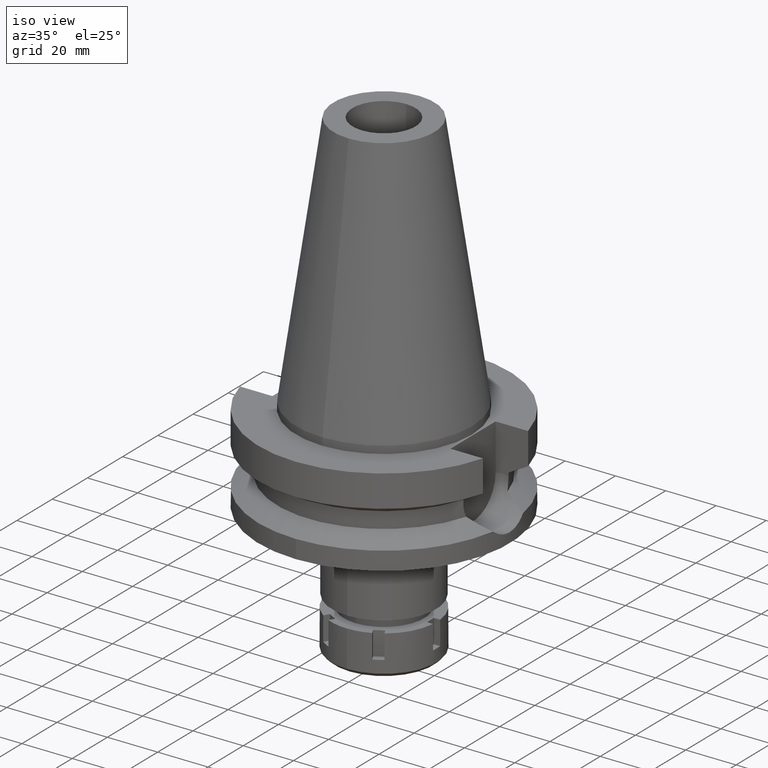
[diagram: clean part render]
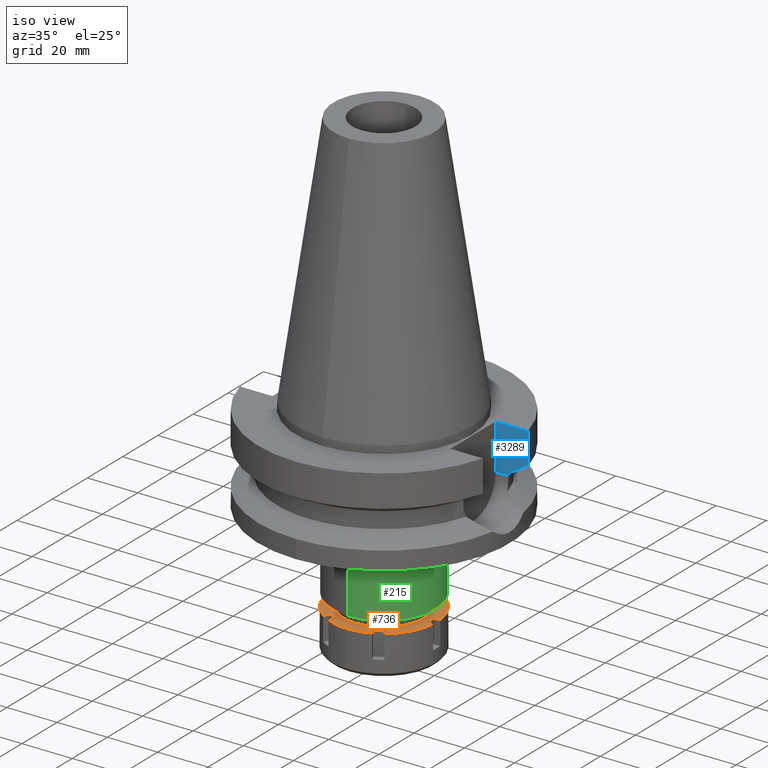
[diagram: same view with three faces highlighted in distinct colors, each labeled with its STEP entity id]
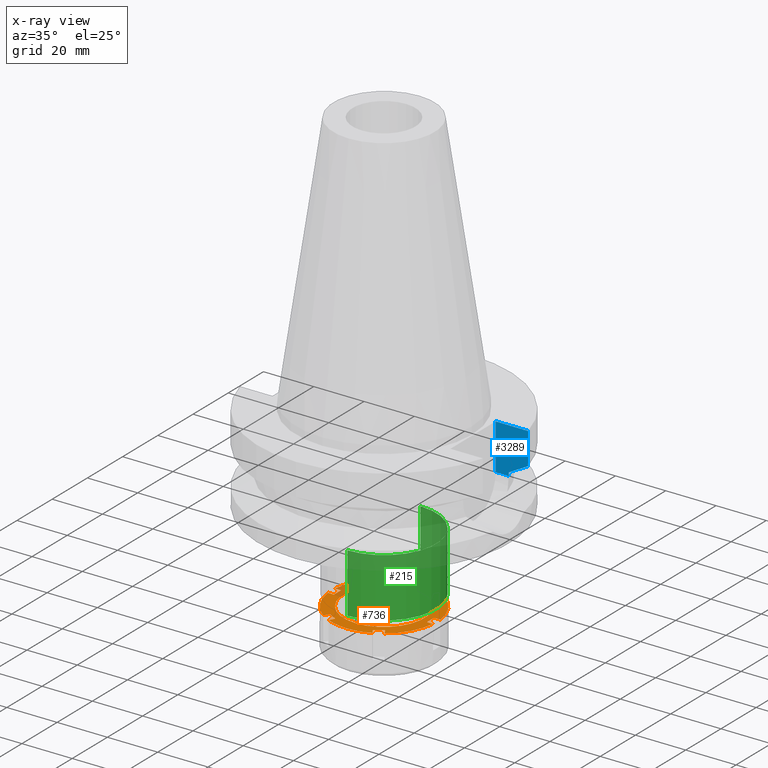
[diagram: x-ray of the same camera — body ghosted, the three highlighted faces saturated]
A machine part, iso view with three faces highlighted in distinct colors.
The next image is the same camera in x-ray (body ghosted, the three faces saturated) — at least one of them is partly hidden behind the body in this view.
Their STEP definitions:

[orange] entity #736 — the highlighted planar face has unit normal (0, 0, -1).
#27 = DIRECTION ( 'NONE',  ( 0.0000000000000000000, 0.0000000000000000000, -1.000000000000000000 ) ) ;
#37 = VERTEX_POINT ( 'NONE', #3438 ) ;
#45 = VERTEX_POINT ( 'NONE', #2312 ) ;
#88 = CARTESIAN_POINT ( 'NONE',  ( 18.50000000000000000, 2.000000000000000000, 0.0000000000000000000 ) ) ;
#99 = LINE ( 'NONE', #1789, #450 ) ;
#114 = VECTOR ( 'NONE', #2872, 1000.000000000000114 ) ;
#199 = EDGE_CURVE ( 'NONE', #2086, #3488, #3001, .T. ) ;
#203 = EDGE_CURVE ( 'NONE', #3253, #2000, #1267, .T. ) ;
#224 = VERTEX_POINT ( 'NONE', #1815 ) ;
#225 = FACE_BOUND ( 'NONE', #2887, .T. ) ;
#243 = ORIENTED_EDGE ( 'NONE', *, *, #522, .F. ) ;
#249 = CIRCLE ( 'NONE', #610, 20.99999999999999289 ) ;
#252 = VERTEX_POINT ( 'NONE', #495 ) ;
#300 = CIRCLE ( 'NONE', #3279, 21.00000000000000000 ) ;
#312 = EDGE_CURVE ( 'NONE', #3313, #2456, #3573, .T. ) ;
#317 = CARTESIAN_POINT ( 'NONE',  ( 18.50000000000000000, 2.000000000000000000, 0.0000000000000000000 ) ) ;
#322 = CARTESIAN_POINT ( 'NONE',  ( -7.517949192430999794, 17.02146997000999917, 0.0000000000000000000 ) ) ;
#331 = LINE ( 'NONE', #2069, #2723 ) ;
#350 = CARTESIAN_POINT ( 'NONE',  ( 0.0000000000000000000, 0.0000000000000000000, 0.0000000000000000000 ) ) ;
#352 = DIRECTION ( 'NONE',  ( 0.0000000000000000000, 0.0000000000000000000, 1.000000000000000000 ) ) ;
#355 = ORIENTED_EDGE ( 'NONE', *, *, #3055, .F. ) ;
#358 = LINE ( 'NONE', #2311, #751 ) ;
#376 = EDGE_CURVE ( 'NONE', #1419, #2991, #1690, .T. ) ;
#378 = CARTESIAN_POINT ( 'NONE',  ( 0.0000000000000000000, 0.0000000000000000000, 0.0000000000000000000 ) ) ;
#416 = CARTESIAN_POINT ( 'NONE',  ( 10.98205080757000118, -15.02146997001000095, 0.0000000000000000000 ) ) ;
#450 = VECTOR ( 'NONE', #2849, 1000.000000000000114 ) ;
#457 = CARTESIAN_POINT ( 'NONE',  ( -20.90454496036999998, 2.000000000000000000, 0.0000000000000000000 ) ) ;
#469 = ORIENTED_EDGE ( 'NONE', *, *, #3005, .T. ) ;
#495 = CARTESIAN_POINT ( 'NONE',  ( 0.0000000000000000000, -21.00000000000000000, 0.0000000000000000000 ) ) ;
#500 = EDGE_CURVE ( 'NONE', #2115, #2772, #3475, .T. ) ;
#507 = DIRECTION ( 'NONE',  ( -1.000000000000000000, 4.090826397637000243E-14, 0.0000000000000000000 ) ) ;
#510 = ORIENTED_EDGE ( 'NONE', *, *, #3107, .F. ) ;
#522 = EDGE_CURVE ( 'NONE', #224, #2523, #249, .T. ) ;
#531 = VERTEX_POINT ( 'NONE', #3456 ) ;
#534 = CIRCLE ( 'NONE', #3520, 16.00000000000000000 ) ;
#541 = ORIENTED_EDGE ( 'NONE', *, *, #312, .F. ) ;
#552 = EDGE_CURVE ( 'NONE', #1763, #616, #2310, .T. ) ;
#577 = ORIENTED_EDGE ( 'NONE', *, *, #2313, .F. ) ;
#610 = AXIS2_PLACEMENT_3D ( 'NONE', #946, #3162, #617 ) ;
#616 = VERTEX_POINT ( 'NONE', #88 ) ;
#617 = DIRECTION ( 'NONE',  ( -0.9954545219222313834, 0.09523809523810303213, 0.0000000000000000000 ) ) ;
#629 = DIRECTION ( 'NONE',  ( 0.4999999999997049027, 0.8660254037846089048, 0.0000000000000000000 ) ) ;
#646 = DIRECTION ( 'NONE',  ( -0.8660254037844541397, -0.4999999999999731326, 0.0000000000000000000 ) ) ;
#663 = VECTOR ( 'NONE', #2950, 1000.000000000000114 ) ;
#673 = ORIENTED_EDGE ( 'NONE', *, *, #2640, .F. ) ;
#684 = CARTESIAN_POINT ( 'NONE',  ( -20.90454496036999998, -2.000000000000000000, 0.0000000000000000000 ) ) ;
#695 = LINE ( 'NONE', #2951, #1042 ) ;
#711 = DIRECTION ( 'NONE',  ( 0.0000000000000000000, 0.0000000000000000000, -1.000000000000000000 ) ) ;
#713 = EDGE_LOOP ( 'NONE', ( #1864, #2308, #3160, #1148, #1231, #243, #3347, #1391, #2933, #2239, #355, #577, #1086, #1951, #747, #2539, #1090, #1560, #510, #469, #3605, #744, #541, #2839, #1199, #2855 ) ) ;
#725 = FACE_OUTER_BOUND ( 'NONE', #713, .T. ) ;
#729 = DIRECTION ( 'NONE',  ( 0.0000000000000000000, 0.0000000000000000000, 1.000000000000000000 ) ) ;
#736 = ADVANCED_FACE ( 'NONE', ( #725, #225 ), #2714, .F. ) ;
#741 = DIRECTION ( 'NONE',  ( 1.000000000000000000, 4.127763882039999760E-14, 0.0000000000000000000 ) ) ;
#744 = ORIENTED_EDGE ( 'NONE', *, *, #1136, .T. ) ;
#747 = ORIENTED_EDGE ( 'NONE', *, *, #3566, .F. ) ;
#748 = CARTESIAN_POINT ( 'NONE',  ( 18.50000000000000000, -2.000000000000000000, 0.0000000000000000000 ) ) ;
#751 = VECTOR ( 'NONE', #1439, 1000.000000000000000 ) ;
#752 = VECTOR ( 'NONE', #2638, 1000.000000000000114 ) ;
#766 = LINE ( 'NONE', #2721, #987 ) ;
#790 = LINE ( 'NONE', #3013, #1557 ) ;
#798 = EDGE_CURVE ( 'NONE', #224, #3143, #3248, .T. ) ;
#836 = VECTOR ( 'NONE', #1454, 1000.000000000000000 ) ;
#849 = CARTESIAN_POINT ( 'NONE',  ( 10.98205080757000118, 15.02146997001000095, 0.0000000000000000000 ) ) ;
#857 = CARTESIAN_POINT ( 'NONE',  ( 0.0000000000000000000, 0.0000000000000000000, 0.0000000000000000000 ) ) ;
#876 = DIRECTION ( 'NONE',  ( -0.5802058708454290725, -0.8144698566776411575, 0.0000000000000000000 ) ) ;
#925 = VERTEX_POINT ( 'NONE', #849 ) ;
#942 = DIRECTION ( 'NONE',  ( 0.0000000000000000000, 0.0000000000000000000, -1.000000000000000000 ) ) ;
#946 = CARTESIAN_POINT ( 'NONE',  ( 0.0000000000000000000, 0.0000000000000000000, 0.0000000000000000000 ) ) ;
#987 = VECTOR ( 'NONE', #2473, 1000.000000000000114 ) ;
#1034 = CARTESIAN_POINT ( 'NONE',  ( -10.98205080757000118, -15.02146997001000095, 0.0000000000000000000 ) ) ;
#1042 = VECTOR ( 'NONE', #1511, 1000.000000000000114 ) ;
#1086 = ORIENTED_EDGE ( 'NONE', *, *, #199, .F. ) ;
#1090 = ORIENTED_EDGE ( 'NONE', *, *, #2138, .F. ) ;
#1096 = AXIS2_PLACEMENT_3D ( 'NONE', #1858, #3247, #1879 ) ;
#1108 = DIRECTION ( 'NONE',  ( 0.0000000000000000000, -1.000000000000000000, 0.0000000000000000000 ) ) ;
#1136 = EDGE_CURVE ( 'NONE', #616, #2456, #3156, .T. ) ;
#1148 = ORIENTED_EDGE ( 'NONE', *, *, #376, .F. ) ;
#1169 = DIRECTION ( 'NONE',  ( 0.8660254037844541397, 0.4999999999999731326, 0.0000000000000000000 ) ) ;
#1199 = ORIENTED_EDGE ( 'NONE', *, *, #2706, .F. ) ;
#1209 = DIRECTION ( 'NONE',  ( 0.0000000000000000000, 0.0000000000000000000, -1.000000000000000000 ) ) ;
#1211 = EDGE_CURVE ( 'NONE', #37, #2697, #534, .T. ) ;
#1231 = ORIENTED_EDGE ( 'NONE', *, *, #2199, .F. ) ;
#1233 = CARTESIAN_POINT ( 'NONE',  ( 0.0000000000000000000, 0.0000000000000000000, 0.0000000000000000000 ) ) ;
#1241 = CARTESIAN_POINT ( 'NONE',  ( 12.18432328774999895, -17.10386699022999935, 0.0000000000000000000 ) ) ;
#1267 = LINE ( 'NONE', #2699, #1295 ) ;
#1295 = VECTOR ( 'NONE', #2379, 1000.000000000000114 ) ;
#1391 = ORIENTED_EDGE ( 'NONE', *, *, #1945, .T. ) ;
#1401 = CARTESIAN_POINT ( 'NONE',  ( -10.98205080757000118, 15.02146997001000095, 0.0000000000000000000 ) ) ;
#1402 = DIRECTION ( 'NONE',  ( -0.4152486510768949035, 0.9097079519157886818, 0.0000000000000000000 ) ) ;
#1419 = VERTEX_POINT ( 'NONE', #2184 ) ;
#1439 = DIRECTION ( 'NONE',  ( -1.000000000000000000, -4.100060768738000191E-14, 0.0000000000000000000 ) ) ;
#1454 = DIRECTION ( 'NONE',  ( 0.0000000000000000000, 1.000000000000000000, 0.0000000000000000000 ) ) ;
#1458 = DIRECTION ( 'NONE',  ( 0.0000000000000000000, 0.0000000000000000000, -1.000000000000000000 ) ) ;
#1465 = LINE ( 'NONE', #1500, #1997 ) ;
#1477 = LINE ( 'NONE', #1730, #1970 ) ;
#1500 = CARTESIAN_POINT ( 'NONE',  ( 10.98205080757000118, -15.02146997001000095, 0.0000000000000000000 ) ) ;
#1511 = DIRECTION ( 'NONE',  ( 0.8660254037844541397, -0.4999999999999731326, 0.0000000000000000000 ) ) ;
#1528 = AXIS2_PLACEMENT_3D ( 'NONE', #2803, #27, #3019 ) ;
#1529 = VECTOR ( 'NONE', #2344, 1000.000000000000000 ) ;
#1536 = CARTESIAN_POINT ( 'NONE',  ( -7.517949192430999794, -17.02146997000999917, 0.0000000000000000000 ) ) ;
#1557 = VECTOR ( 'NONE', #507, 1000.000000000000000 ) ;
#1560 = ORIENTED_EDGE ( 'NONE', *, *, #500, .F. ) ;
#1577 = CARTESIAN_POINT ( 'NONE',  ( 0.0000000000000000000, 16.00000000000000000, 0.0000000000000000000 ) ) ;
#1597 = EDGE_CURVE ( 'NONE', #252, #2086, #300, .T. ) ;
#1615 = AXIS2_PLACEMENT_3D ( 'NONE', #857, #1209, #2886 ) ;
#1681 = CIRCLE ( 'NONE', #1096, 21.00000000000000000 ) ;
#1690 = LINE ( 'NONE', #1401, #1818 ) ;
#1730 = CARTESIAN_POINT ( 'NONE',  ( -10.98205080757000118, -15.02146997001000095, 0.0000000000000000000 ) ) ;
#1741 = CARTESIAN_POINT ( 'NONE',  ( 0.0000000000000000000, 0.0000000000000000000, 0.0000000000000000000 ) ) ;
#1757 = CARTESIAN_POINT ( 'NONE',  ( -12.18432328774999895, 17.10386699022999935, 0.0000000000000000000 ) ) ;
#1763 = VERTEX_POINT ( 'NONE', #748 ) ;
#1789 = CARTESIAN_POINT ( 'NONE',  ( -7.517949192430999794, 17.02146997000999917, 0.0000000000000000000 ) ) ;
#1815 = CARTESIAN_POINT ( 'NONE',  ( -20.90454496036999998, 2.000000000000000000, 0.0000000000000000000 ) ) ;
#1818 = VECTOR ( 'NONE', #1169, 1000.000000000000114 ) ;
#1841 = CARTESIAN_POINT ( 'NONE',  ( 12.18432328774999895, 17.10386699022999935, 0.0000000000000000000 ) ) ;
#1858 = CARTESIAN_POINT ( 'NONE',  ( 0.0000000000000000000, 0.0000000000000000000, 0.0000000000000000000 ) ) ;
#1861 = DIRECTION ( 'NONE',  ( 0.0000000000000000000, -1.000000000000000000, 0.0000000000000000000 ) ) ;
#1864 = ORIENTED_EDGE ( 'NONE', *, *, #3245, .F. ) ;
#1879 = DIRECTION ( 'NONE',  ( 0.0000000000000000000, 1.000000000000000000, 0.0000000000000000000 ) ) ;
#1897 = VERTEX_POINT ( 'NONE', #1034 ) ;
#1904 = CIRCLE ( 'NONE', #2035, 20.99999999999999645 ) ;
#1915 = CARTESIAN_POINT ( 'NONE',  ( -8.720221672615998898, -19.10386699022999935, 0.0000000000000000000 ) ) ;
#1923 = VERTEX_POINT ( 'NONE', #1925 ) ;
#1925 = CARTESIAN_POINT ( 'NONE',  ( 20.90454496036999998, -2.000000000000000000, 0.0000000000000000000 ) ) ;
#1928 = CARTESIAN_POINT ( 'NONE',  ( 0.0000000000000000000, 21.00000000000000000, 0.0000000000000000000 ) ) ;
#1938 = EDGE_CURVE ( 'NONE', #531, #2363, #2628, .T. ) ;
#1945 = EDGE_CURVE ( 'NONE', #3143, #2105, #2507, .T. ) ;
#1951 = ORIENTED_EDGE ( 'NONE', *, *, #1597, .F. ) ;
#1953 = CARTESIAN_POINT ( 'NONE',  ( 7.517949192430999794, 17.02146997000999917, 0.0000000000000000000 ) ) ;
#1970 = VECTOR ( 'NONE', #3164, 1000.000000000000114 ) ;
#1997 = VECTOR ( 'NONE', #646, 1000.000000000000114 ) ;
#2000 = VERTEX_POINT ( 'NONE', #1953 ) ;
#2009 = CARTESIAN_POINT ( 'NONE',  ( -12.18432328774999895, 17.10386699022999935, 0.0000000000000000000 ) ) ;
#2035 = AXIS2_PLACEMENT_3D ( 'NONE', #378, #1458, #876 ) ;
#2069 = CARTESIAN_POINT ( 'NONE',  ( 10.98205080757000118, 15.02146997001000095, 0.0000000000000000000 ) ) ;
#2086 = VERTEX_POINT ( 'NONE', #1915 ) ;
#2105 = VERTEX_POINT ( 'NONE', #2773 ) ;
#2115 = VERTEX_POINT ( 'NONE', #3034 ) ;
#2138 = EDGE_CURVE ( 'NONE', #2772, #3016, #1465, .T. ) ;
#2171 = VECTOR ( 'NONE', #3182, 1000.000000000000114 ) ;
#2175 = EDGE_CURVE ( 'NONE', #2991, #531, #99, .T. ) ;
#2184 = CARTESIAN_POINT ( 'NONE',  ( -10.98205080757000118, 15.02146997001000095, 0.0000000000000000000 ) ) ;
#2198 = VERTEX_POINT ( 'NONE', #684 ) ;
#2199 = EDGE_CURVE ( 'NONE', #2523, #1419, #3396, .T. ) ;
#2239 = ORIENTED_EDGE ( 'NONE', *, *, #3128, .F. ) ;
#2304 = LINE ( 'NONE', #1536, #752 ) ;
#2308 = ORIENTED_EDGE ( 'NONE', *, *, #1938, .F. ) ;
#2310 = LINE ( 'NONE', #2580, #836 ) ;
#2311 = CARTESIAN_POINT ( 'NONE',  ( 20.90454496036999998, -2.000000000000000000, 0.0000000000000000000 ) ) ;
#2312 = CARTESIAN_POINT ( 'NONE',  ( 8.720221672615000585, -19.10386699022999935, 0.0000000000000000000 ) ) ;
#2313 = EDGE_CURVE ( 'NONE', #3488, #1897, #2304, .T. ) ;
#2326 = AXIS2_PLACEMENT_3D ( 'NONE', #350, #942, #2874 ) ;
#2338 = DIRECTION ( 'NONE',  ( 0.0000000000000000000, -1.000000000000000000, 0.0000000000000000000 ) ) ;
#2344 = DIRECTION ( 'NONE',  ( 1.000000000000000000, -3.989248315528999745E-14, 0.0000000000000000000 ) ) ;
#2347 = VECTOR ( 'NONE', #1108, 1000.000000000000000 ) ;
#2353 = CARTESIAN_POINT ( 'NONE',  ( 0.0000000000000000000, 0.0000000000000000000, 0.0000000000000000000 ) ) ;
#2363 = VERTEX_POINT ( 'NONE', #1928 ) ;
#2368 = DIRECTION ( 'NONE',  ( 0.0000000000000000000, 1.000000000000000000, 0.0000000000000000000 ) ) ;
#2379 = DIRECTION ( 'NONE',  ( -0.5000000000000169864, -0.8660254037844288266, 0.0000000000000000000 ) ) ;
#2412 = CARTESIAN_POINT ( 'NONE',  ( 8.720221672615000585, 19.10386699022999935, 0.0000000000000000000 ) ) ;
#2420 = CARTESIAN_POINT ( 'NONE',  ( 0.0000000000000000000, 0.0000000000000000000, 0.0000000000000000000 ) ) ;
#2456 = VERTEX_POINT ( 'NONE', #3373 ) ;
#2473 = DIRECTION ( 'NONE',  ( 0.5000000000000169864, -0.8660254037844288266, 0.0000000000000000000 ) ) ;
#2487 = CARTESIAN_POINT ( 'NONE',  ( -12.18432328774999895, -17.10386699022999935, 0.0000000000000000000 ) ) ;
#2507 = LINE ( 'NONE', #3540, #2347 ) ;
#2523 = VERTEX_POINT ( 'NONE', #2009 ) ;
#2539 = ORIENTED_EDGE ( 'NONE', *, *, #2905, .F. ) ;
#2556 = CIRCLE ( 'NONE', #2326, 21.00000000000000711 ) ;
#2580 = CARTESIAN_POINT ( 'NONE',  ( 18.50000000000000000, -2.000000000000000000, 0.0000000000000000000 ) ) ;
#2628 = CIRCLE ( 'NONE', #3110, 21.00000000000000711 ) ;
#2638 = DIRECTION ( 'NONE',  ( -0.8660254037844541397, 0.4999999999999731326, 0.0000000000000000000 ) ) ;
#2640 = EDGE_CURVE ( 'NONE', #2697, #37, #2660, .T. ) ;
#2660 = CIRCLE ( 'NONE', #3208, 16.00000000000000000 ) ;
#2697 = VERTEX_POINT ( 'NONE', #1577 ) ;
#2699 = CARTESIAN_POINT ( 'NONE',  ( 8.720221672615000585, 19.10386699022999935, 0.0000000000000000000 ) ) ;
#2706 = EDGE_CURVE ( 'NONE', #2000, #925, #695, .T. ) ;
#2714 = PLANE ( 'NONE',  #3418 ) ;
#2721 = CARTESIAN_POINT ( 'NONE',  ( 7.517949192430999794, -17.02146997000999917, 0.0000000000000000000 ) ) ;
#2723 = VECTOR ( 'NONE', #629, 1000.000000000000114 ) ;
#2772 = VERTEX_POINT ( 'NONE', #416 ) ;
#2773 = CARTESIAN_POINT ( 'NONE',  ( -18.50000000000000000, -2.000000000000000000, 0.0000000000000000000 ) ) ;
#2803 = CARTESIAN_POINT ( 'NONE',  ( 0.0000000000000000000, 0.0000000000000000000, 0.0000000000000000000 ) ) ;
#2838 = VERTEX_POINT ( 'NONE', #2487 ) ;
#2839 = ORIENTED_EDGE ( 'NONE', *, *, #3611, .F. ) ;
#2849 = DIRECTION ( 'NONE',  ( -0.5000000000000169864, 0.8660254037844288266, 0.0000000000000000000 ) ) ;
#2855 = ORIENTED_EDGE ( 'NONE', *, *, #203, .F. ) ;
#2871 = DIRECTION ( 'NONE',  ( 0.0000000000000000000, 0.0000000000000000000, -1.000000000000000000 ) ) ;
#2872 = DIRECTION ( 'NONE',  ( 0.4999999999997049027, -0.8660254037846089048, 0.0000000000000000000 ) ) ;
#2874 = DIRECTION ( 'NONE',  ( 0.4152486510768949035, -0.9097079519157886818, 0.0000000000000000000 ) ) ;
#2886 = DIRECTION ( 'NONE',  ( 0.9954545219222313834, -0.09523809523810303213, 0.0000000000000000000 ) ) ;
#2887 = EDGE_LOOP ( 'NONE', ( #673, #3038 ) ) ;
#2905 = EDGE_CURVE ( 'NONE', #3016, #45, #766, .T. ) ;
#2933 = ORIENTED_EDGE ( 'NONE', *, *, #3339, .T. ) ;
#2950 = DIRECTION ( 'NONE',  ( 0.5000000000000169864, 0.8660254037844288266, 0.0000000000000000000 ) ) ;
#2951 = CARTESIAN_POINT ( 'NONE',  ( 7.517949192430999794, 17.02146997000999917, 0.0000000000000000000 ) ) ;
#2980 = CARTESIAN_POINT ( 'NONE',  ( 0.0000000000000000000, 0.0000000000000000000, 0.0000000000000000000 ) ) ;
#2991 = VERTEX_POINT ( 'NONE', #322 ) ;
#3001 = LINE ( 'NONE', #3557, #663 ) ;
#3005 = EDGE_CURVE ( 'NONE', #1923, #1763, #358, .T. ) ;
#3013 = CARTESIAN_POINT ( 'NONE',  ( -18.50000000000000000, -2.000000000000000000, 0.0000000000000000000 ) ) ;
#3016 = VERTEX_POINT ( 'NONE', #3424 ) ;
#3019 = DIRECTION ( 'NONE',  ( 0.5802058708454290725, 0.8144698566776411575, 0.0000000000000000000 ) ) ;
#3034 = CARTESIAN_POINT ( 'NONE',  ( 12.18432328774999895, -17.10386699022999935, 0.0000000000000000000 ) ) ;
#3036 = CARTESIAN_POINT ( 'NONE',  ( -7.517949192430999794, -17.02146997000999917, 0.0000000000000000000 ) ) ;
#3038 = ORIENTED_EDGE ( 'NONE', *, *, #1211, .F. ) ;
#3052 = VECTOR ( 'NONE', #741, 1000.000000000000000 ) ;
#3055 = EDGE_CURVE ( 'NONE', #1897, #2838, #1477, .T. ) ;
#3083 = CARTESIAN_POINT ( 'NONE',  ( -18.50000000000000000, 2.000000000000000000, 0.0000000000000000000 ) ) ;
#3107 = EDGE_CURVE ( 'NONE', #1923, #2115, #3495, .T. ) ;
#3110 = AXIS2_PLACEMENT_3D ( 'NONE', #2420, #3609, #1402 ) ;
#3128 = EDGE_CURVE ( 'NONE', #2838, #2198, #1904, .T. ) ;
#3143 = VERTEX_POINT ( 'NONE', #3083 ) ;
#3156 = LINE ( 'NONE', #317, #1529 ) ;
#3160 = ORIENTED_EDGE ( 'NONE', *, *, #2175, .F. ) ;
#3162 = DIRECTION ( 'NONE',  ( 0.0000000000000000000, 0.0000000000000000000, -1.000000000000000000 ) ) ;
#3164 = DIRECTION ( 'NONE',  ( -0.4999999999997049027, -0.8660254037846089048, 0.0000000000000000000 ) ) ;
#3182 = DIRECTION ( 'NONE',  ( -0.4999999999997049027, 0.8660254037846089048, 0.0000000000000000000 ) ) ;
#3208 = AXIS2_PLACEMENT_3D ( 'NONE', #2353, #729, #2368 ) ;
#3245 = EDGE_CURVE ( 'NONE', #2363, #3253, #1681, .T. ) ;
#3247 = DIRECTION ( 'NONE',  ( 0.0000000000000000000, 0.0000000000000000000, -1.000000000000000000 ) ) ;
#3248 = LINE ( 'NONE', #457, #3052 ) ;
#3253 = VERTEX_POINT ( 'NONE', #2412 ) ;
#3279 = AXIS2_PLACEMENT_3D ( 'NONE', #1233, #2871, #2338 ) ;
#3313 = VERTEX_POINT ( 'NONE', #1841 ) ;
#3339 = EDGE_CURVE ( 'NONE', #2105, #2198, #790, .T. ) ;
#3347 = ORIENTED_EDGE ( 'NONE', *, *, #798, .T. ) ;
#3373 = CARTESIAN_POINT ( 'NONE',  ( 20.90454496036999998, 2.000000000000000000, 0.0000000000000000000 ) ) ;
#3396 = LINE ( 'NONE', #1757, #114 ) ;
#3418 = AXIS2_PLACEMENT_3D ( 'NONE', #2980, #711, #1861 ) ;
#3424 = CARTESIAN_POINT ( 'NONE',  ( 7.517949192430999794, -17.02146997000999917, 0.0000000000000000000 ) ) ;
#3438 = CARTESIAN_POINT ( 'NONE',  ( 0.0000000000000000000, -16.00000000000000000, 0.0000000000000000000 ) ) ;
#3456 = CARTESIAN_POINT ( 'NONE',  ( -8.720221672615000585, 19.10386699022999935, 0.0000000000000000000 ) ) ;
#3475 = LINE ( 'NONE', #1241, #2171 ) ;
#3488 = VERTEX_POINT ( 'NONE', #3036 ) ;
#3495 = CIRCLE ( 'NONE', #1615, 20.99999999999999289 ) ;
#3496 = DIRECTION ( 'NONE',  ( 0.0000000000000000000, -1.000000000000000000, 0.0000000000000000000 ) ) ;
#3520 = AXIS2_PLACEMENT_3D ( 'NONE', #1741, #352, #3496 ) ;
#3540 = CARTESIAN_POINT ( 'NONE',  ( -18.50000000000000000, 2.000000000000000000, 0.0000000000000000000 ) ) ;
#3557 = CARTESIAN_POINT ( 'NONE',  ( -8.720221672615000585, -19.10386699022999935, 0.0000000000000000000 ) ) ;
#3566 = EDGE_CURVE ( 'NONE', #45, #252, #2556, .T. ) ;
#3573 = CIRCLE ( 'NONE', #1528, 20.99999999999999645 ) ;
#3605 = ORIENTED_EDGE ( 'NONE', *, *, #552, .T. ) ;
#3609 = DIRECTION ( 'NONE',  ( 0.0000000000000000000, 0.0000000000000000000, -1.000000000000000000 ) ) ;
#3611 = EDGE_CURVE ( 'NONE', #925, #3313, #331, .T. ) ;

[blue] entity #3289 — the highlighted planar face has unit normal (0, 1, 0).
#398 = EDGE_CURVE ( 'NONE', #1570, #3518, #2253, .T. ) ;
#429 = CARTESIAN_POINT ( 'NONE',  ( 35.39999999999999858, 12.84999999999999964, -3.000000000000000000 ) ) ;
#432 = LINE ( 'NONE', #3524, #3326 ) ;
#440 = DIRECTION ( 'NONE',  ( -0.0000000000000000000, 1.000000000000000000, 0.0000000000000000000 ) ) ;
#461 = ORIENTED_EDGE ( 'NONE', *, *, #2658, .T. ) ;
#536 = CARTESIAN_POINT ( 'NONE',  ( 48.32056913384000296, 12.85000383585999906, -15.66265787441999890 ) ) ;
#604 = ORIENTED_EDGE ( 'NONE', *, *, #1538, .T. ) ;
#644 = CARTESIAN_POINT ( 'NONE',  ( 48.32056913384000296, 12.85000383585999906, -15.66265787441999890 ) ) ;
#721 = LINE ( 'NONE', #3206, #2866 ) ;
#779 = EDGE_CURVE ( 'NONE', #2037, #1367, #2106, .T. ) ;
#787 = CARTESIAN_POINT ( 'NONE',  ( 40.51083300056000525, 12.84999648251999993, -19.99284624891000206 ) ) ;
#814 = EDGE_LOOP ( 'NONE', ( #1591, #1013, #3033, #461, #604, #2191 ) ) ;
#844 = VERTEX_POINT ( 'NONE', #429 ) ;
#853 = DIRECTION ( 'NONE',  ( 8.055814647628599031E-08, -3.029270867165849940E-07, 0.9999999999999509281 ) ) ;
#885 = CARTESIAN_POINT ( 'NONE',  ( 48.32056913384000296, 12.85000383585999906, -15.66265787441999890 ) ) ;
#904 = VECTOR ( 'NONE', #2125, 1000.000000000000000 ) ;
#905 = CARTESIAN_POINT ( 'NONE',  ( 35.39999999999999858, 12.84999999999999964, -21.14999999999999858 ) ) ;
#1013 = ORIENTED_EDGE ( 'NONE', *, *, #398, .T. ) ;
#1053 = VERTEX_POINT ( 'NONE', #1792 ) ;
#1304 = EDGE_CURVE ( 'NONE', #844, #3518, #721, .T. ) ;
#1367 = VERTEX_POINT ( 'NONE', #787 ) ;
#1464 = DIRECTION ( 'NONE',  ( 1.000000000000000000, -3.336643826789999529E-14, 0.0000000000000000000 ) ) ;
#1499 = LINE ( 'NONE', #905, #2569 ) ;
#1538 = EDGE_CURVE ( 'NONE', #1053, #2037, #1499, .T. ) ;
#1570 = VERTEX_POINT ( 'NONE', #644 ) ;
#1586 = CARTESIAN_POINT ( 'NONE',  ( 35.39999999999999858, 12.84999999999999964, -21.14999999999999858 ) ) ;
#1591 = ORIENTED_EDGE ( 'NONE', *, *, #2178, .F. ) ;
#1603 = CARTESIAN_POINT ( 'NONE',  ( 40.51083188481999997, 12.84999999999999964, -21.14999999999999858 ) ) ;
#1722 = CARTESIAN_POINT ( 'NONE',  ( 42.90862369218401540, 12.84999295787632256, -18.67324849511757634 ) ) ;
#1792 = CARTESIAN_POINT ( 'NONE',  ( 35.39999999999999858, 12.84999999999999964, -21.14999999999999858 ) ) ;
#2037 = VERTEX_POINT ( 'NONE', #2207 ) ;
#2063 = VECTOR ( 'NONE', #853, 1000.000000000000114 ) ;
#2106 = LINE ( 'NONE', #1603, #904 ) ;
#2125 = DIRECTION ( 'NONE',  ( 9.642122151655148610E-07, -3.039772167059045013E-06, 0.9999999999949150675 ) ) ;
#2129 = DIRECTION ( 'NONE',  ( 0.0000000000000000000, 0.0000000000000000000, -1.000000000000000000 ) ) ;
#2178 = EDGE_CURVE ( 'NONE', #1570, #1367, #2494, .T. ) ;
#2191 = ORIENTED_EDGE ( 'NONE', *, *, #779, .T. ) ;
#2207 = CARTESIAN_POINT ( 'NONE',  ( 40.51083188481999997, 12.84999999999999964, -21.14999999999999858 ) ) ;
#2253 = LINE ( 'NONE', #536, #2063 ) ;
#2265 = CARTESIAN_POINT ( 'NONE',  ( 48.32057015392000210, 12.84999999999999964, -3.000000000000000000 ) ) ;
#2331 = FACE_OUTER_BOUND ( 'NONE', #814, .T. ) ;
#2494 = B_SPLINE_CURVE_WITH_KNOTS ( 'NONE', 3,
 ( #885, #3416, #1722, #3117 ),
 .UNSPECIFIED., .F., .F.,
 ( 4, 4 ),
 ( 0.0000000000000000000, 1.000000000000000000 ),
 .UNSPECIFIED. ) ;
#2569 = VECTOR ( 'NONE', #1464, 1000.000000000000000 ) ;
#2658 = EDGE_CURVE ( 'NONE', #844, #1053, #432, .T. ) ;
#2692 = DIRECTION ( 'NONE',  ( 1.000000000000000000, 0.0000000000000000000, 0.0000000000000000000 ) ) ;
#2866 = VECTOR ( 'NONE', #3246, 1000.000000000000000 ) ;
#3017 = AXIS2_PLACEMENT_3D ( 'NONE', #1586, #440, #2692 ) ;
#3033 = ORIENTED_EDGE ( 'NONE', *, *, #1304, .F. ) ;
#3117 = CARTESIAN_POINT ( 'NONE',  ( 40.51083300056000525, 12.84999648251999993, -19.99284624891000206 ) ) ;
#3184 = PLANE ( 'NONE',  #3017 ) ;
#3206 = CARTESIAN_POINT ( 'NONE',  ( 35.39999999999999858, 12.84999999999999964, -3.000000000000000000 ) ) ;
#3246 = DIRECTION ( 'NONE',  ( 1.000000000000000000, 0.0000000000000000000, 0.0000000000000000000 ) ) ;
#3289 = ADVANCED_FACE ( 'NONE', ( #2331 ), #3184, .F. ) ;
#3326 = VECTOR ( 'NONE', #2129, 1000.000000000000000 ) ;
#3416 = CARTESIAN_POINT ( 'NONE',  ( 45.51179786140243522, 12.85000766709870135, -17.22986770917934152 ) ) ;
#3518 = VERTEX_POINT ( 'NONE', #2265 ) ;
#3524 = CARTESIAN_POINT ( 'NONE',  ( 35.39999999999999858, 12.84999999999999964, -3.000000000000000000 ) ) ;

[green] entity #215 — the highlighted cylindrical surface (partial cylindrical patch) has radius 20.75 mm, axis along (0, 0, -1).
#71 = CIRCLE ( 'NONE', #360, 20.75000000000000000 ) ;
#122 = VERTEX_POINT ( 'NONE', #1050 ) ;
#128 = AXIS2_PLACEMENT_3D ( 'NONE', #2687, #2355, #164 ) ;
#164 = DIRECTION ( 'NONE',  ( 0.0000000000000000000, 1.000000000000000000, 0.0000000000000000000 ) ) ;
#211 = CARTESIAN_POINT ( 'NONE',  ( 0.0000000000000000000, 2.583882281520999630E-14, 110.9900000000000091 ) ) ;
#215 = ADVANCED_FACE ( 'NONE', ( #1030 ), #463, .T. ) ;
#277 = DIRECTION ( 'NONE',  ( 0.0000000000000000000, 0.0000000000000000000, -1.000000000000000000 ) ) ;
#360 = AXIS2_PLACEMENT_3D ( 'NONE', #1001, #3491, #2406 ) ;
#463 = CYLINDRICAL_SURFACE ( 'NONE', #953, 20.75000000000000000 ) ;
#597 = ORIENTED_EDGE ( 'NONE', *, *, #1762, .T. ) ;
#620 = VERTEX_POINT ( 'NONE', #1188 ) ;
#809 = VERTEX_POINT ( 'NONE', #2934 ) ;
#811 = ORIENTED_EDGE ( 'NONE', *, *, #1667, .T. ) ;
#858 = ORIENTED_EDGE ( 'NONE', *, *, #973, .T. ) ;
#953 = AXIS2_PLACEMENT_3D ( 'NONE', #211, #2662, #3251 ) ;
#973 = EDGE_CURVE ( 'NONE', #122, #809, #3319, .T. ) ;
#1001 = CARTESIAN_POINT ( 'NONE',  ( 0.0000000000000000000, 2.583882281520999630E-14, -69.50000000000000000 ) ) ;
#1030 = FACE_OUTER_BOUND ( 'NONE', #1106, .T. ) ;
#1050 = CARTESIAN_POINT ( 'NONE',  ( 0.0000000000000000000, -20.75000000000000000, -46.00000000000000000 ) ) ;
#1061 = VECTOR ( 'NONE', #277, 1000.000000000000000 ) ;
#1106 = EDGE_LOOP ( 'NONE', ( #811, #858, #597, #3062 ) ) ;
#1188 = CARTESIAN_POINT ( 'NONE',  ( 0.0000000000000000000, 20.75000000000000000, -69.50000000000000000 ) ) ;
#1296 = EDGE_CURVE ( 'NONE', #1345, #620, #2911, .T. ) ;
#1345 = VERTEX_POINT ( 'NONE', #3599 ) ;
#1667 = EDGE_CURVE ( 'NONE', #1345, #122, #1699, .T. ) ;
#1699 = CIRCLE ( 'NONE', #128, 20.75000000000000000 ) ;
#1762 = EDGE_CURVE ( 'NONE', #809, #620, #71, .T. ) ;
#2343 = VECTOR ( 'NONE', #2957, 1000.000000000000000 ) ;
#2355 = DIRECTION ( 'NONE',  ( 0.0000000000000000000, 0.0000000000000000000, -1.000000000000000000 ) ) ;
#2406 = DIRECTION ( 'NONE',  ( 0.0000000000000000000, -1.000000000000000000, 0.0000000000000000000 ) ) ;
#2481 = CARTESIAN_POINT ( 'NONE',  ( 0.0000000000000000000, -20.75000000000000000, -46.00000000000000000 ) ) ;
#2662 = DIRECTION ( 'NONE',  ( 0.0000000000000000000, 0.0000000000000000000, -1.000000000000000000 ) ) ;
#2687 = CARTESIAN_POINT ( 'NONE',  ( 0.0000000000000000000, 0.0000000000000000000, -46.00000000000000000 ) ) ;
#2911 = LINE ( 'NONE', #2945, #2343 ) ;
#2934 = CARTESIAN_POINT ( 'NONE',  ( 0.0000000000000000000, -20.75000000000000000, -69.50000000000000000 ) ) ;
#2945 = CARTESIAN_POINT ( 'NONE',  ( 0.0000000000000000000, 20.75000000000000000, -46.00000000000000000 ) ) ;
#2957 = DIRECTION ( 'NONE',  ( 0.0000000000000000000, 0.0000000000000000000, -1.000000000000000000 ) ) ;
#3062 = ORIENTED_EDGE ( 'NONE', *, *, #1296, .F. ) ;
#3251 = DIRECTION ( 'NONE',  ( 0.0000000000000000000, -1.000000000000000000, 0.0000000000000000000 ) ) ;
#3319 = LINE ( 'NONE', #2481, #1061 ) ;
#3491 = DIRECTION ( 'NONE',  ( 0.0000000000000000000, 0.0000000000000000000, 1.000000000000000000 ) ) ;
#3599 = CARTESIAN_POINT ( 'NONE',  ( 0.0000000000000000000, 20.75000000000000000, -46.00000000000000000 ) ) ;